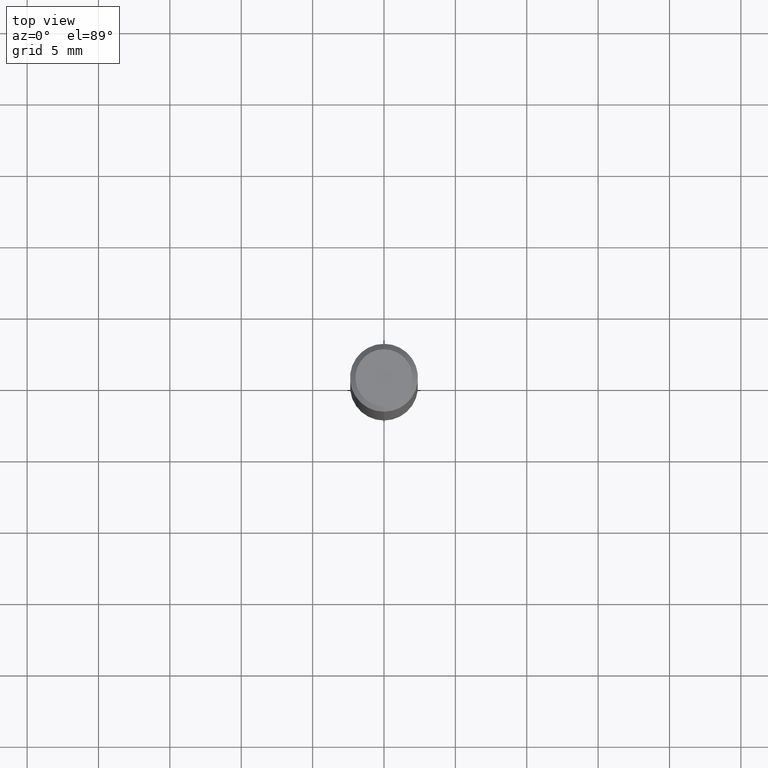
[diagram: clean part render]
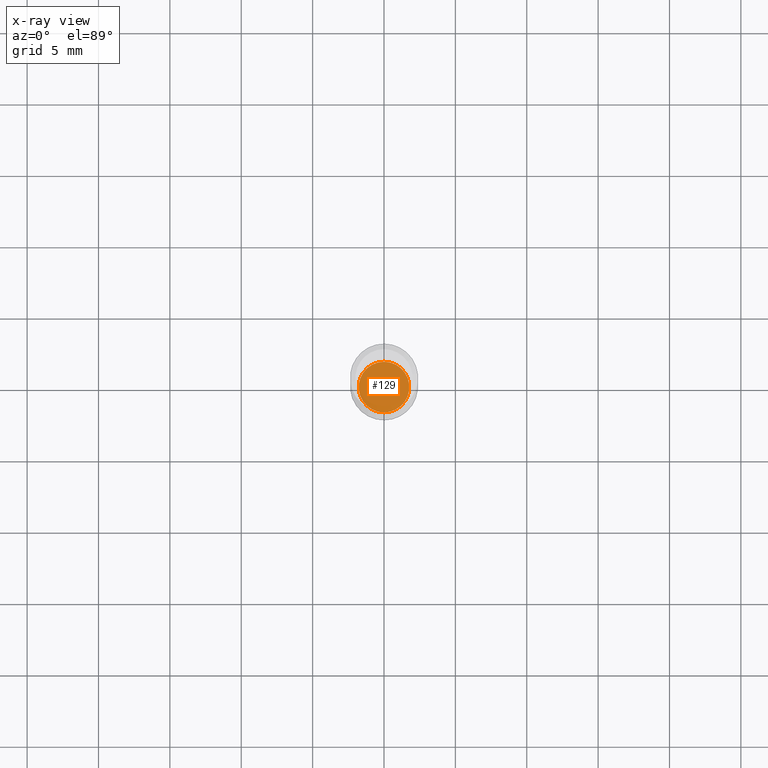
[diagram: x-ray — body ghosted, one internal face saturated and labeled with its STEP entity id]
A machine part, top view, then the same camera in x-ray: the body is ghosted and one INTERNAL B-rep face — a face not visible from any outside direction — is saturated and labeled: STEP entity #129.
In plain terms, the highlighted planar face has unit normal (-0, 0, 1).
Its self-contained STEP definition (entity closure, byte-faithful):
#21 = CIRCLE ( 'NONE', #164, 0.06980000000000005644 ) ;
#37 = CARTESIAN_POINT ( 'NONE',  ( 4.977351863999869690E-16, 0.06979999999999481064, -1.500000000000000222 ) ) ;
#48 = ORIENTED_EDGE ( 'NONE', *, *, #447, .F. ) ;
#52 = CIRCLE ( 'NONE', #121, 0.06980000000000005644 ) ;
#74 = PLANE ( 'NONE',  #478 ) ;
#103 = DIRECTION ( 'NONE',  ( -6.982962677686265922E-15, -1.000000000000000000, 3.913822340493210566E-15 ) ) ;
#121 = AXIS2_PLACEMENT_3D ( 'NONE', #387, #348, #501 ) ;
#129 = ADVANCED_FACE ( 'NONE', ( #277 ), #74, .F. ) ;
#152 = DIRECTION ( 'NONE',  ( -2.445268528450320395E-29, 3.491768147958502797E-15, 1.000000000000000000 ) ) ;
#164 = AXIS2_PLACEMENT_3D ( 'NONE', #452, #436, #103 ) ;
#201 = DIRECTION ( 'NONE',  ( -6.982962677686265922E-15, -1.000000000000000000, 3.491768147958502797E-15 ) ) ;
#243 = ORIENTED_EDGE ( 'NONE', *, *, #281, .F. ) ;
#277 = FACE_OUTER_BOUND ( 'NONE', #346, .T. ) ;
#281 = EDGE_CURVE ( 'NONE', #286, #499, #52, .T. ) ;
#286 = VERTEX_POINT ( 'NONE', #389 ) ;
#346 = EDGE_LOOP ( 'NONE', ( #243, #48 ) ) ;
#348 = DIRECTION ( 'NONE',  ( -2.445268528450320675E-29, 3.491768147958502797E-15, 1.000000000000000000 ) ) ;
#387 = CARTESIAN_POINT ( 'NONE',  ( 3.667902792675480032E-29, -5.237652221937753012E-15, -1.499999999999999778 ) ) ;
#389 = CARTESIAN_POINT ( 'NONE',  ( -4.874107949024650610E-16, -0.06980000000000530225, -1.499999999999999556 ) ) ;
#390 = CARTESIAN_POINT ( 'NONE',  ( 3.667902792675480032E-29, -5.237652221937753012E-15, -1.499999999999999778 ) ) ;
#436 = DIRECTION ( 'NONE',  ( -2.445268528450320675E-29, 3.491768147958502797E-15, 1.000000000000000000 ) ) ;
#447 = EDGE_CURVE ( 'NONE', #499, #286, #21, .T. ) ;
#452 = CARTESIAN_POINT ( 'NONE',  ( 3.667902792675480032E-29, -5.237652221937753012E-15, -1.499999999999999778 ) ) ;
#478 = AXIS2_PLACEMENT_3D ( 'NONE', #390, #152, #201 ) ;
#499 = VERTEX_POINT ( 'NONE', #37 ) ;
#501 = DIRECTION ( 'NONE',  ( -6.982962677686265922E-15, -1.000000000000000000, 3.913822340493210566E-15 ) ) ;